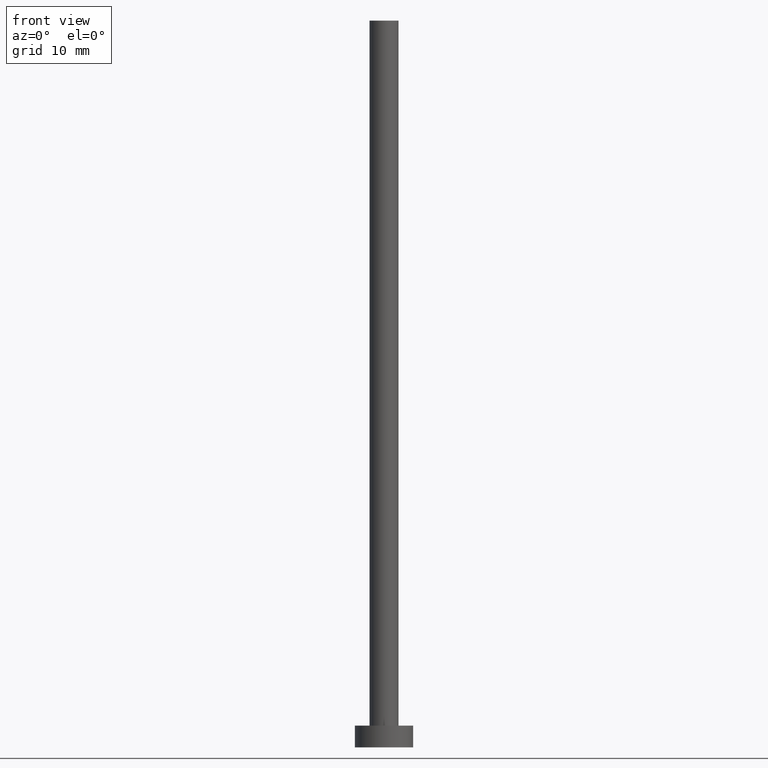
[diagram: clean part render]
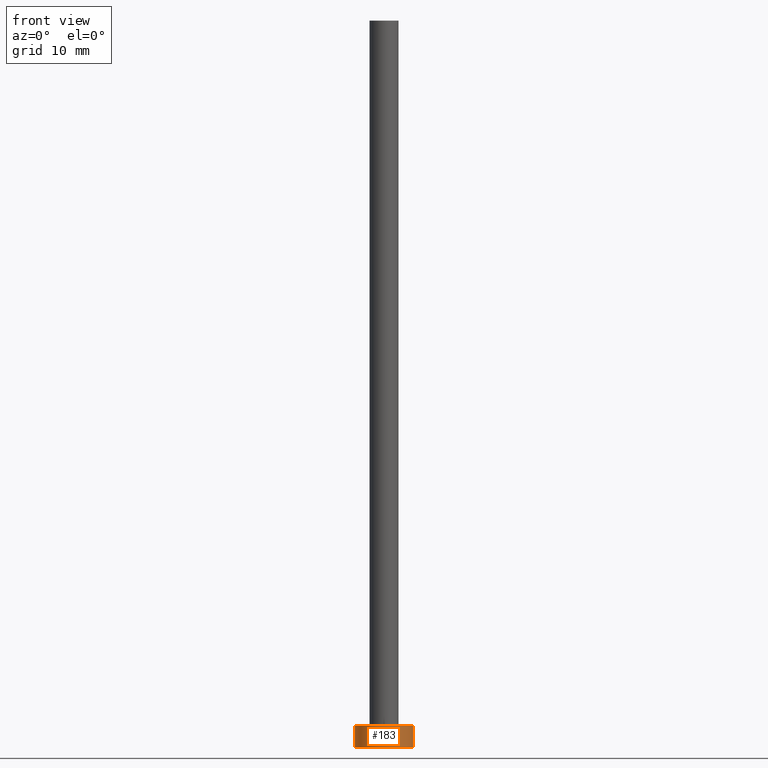
[diagram: same view with one face highlighted and labeled with its STEP entity id]
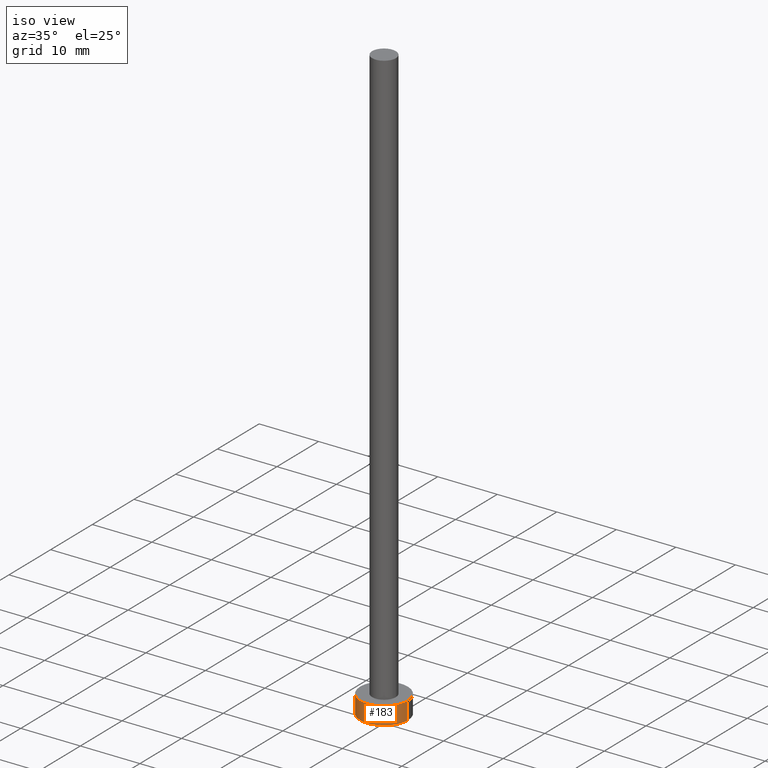
[diagram: same view with one face highlighted and labeled with its STEP entity id]
A machine part, front view. The second image highlights one B-rep face of the part: STEP entity #183.
A second angle (iso view) of the same face is appended — the face is thin or edge-on in the first view.
In plain terms, the highlighted cylindrical surface (edge-blend (fillet) strip) has radius 4 mm, axis along (-0, -0, -1).
Its self-contained STEP definition (entity closure, byte-faithful):
#8 = EDGE_LOOP ( 'NONE', ( #243, #105, #41, #53 ) ) ;
#18 = EDGE_CURVE ( 'NONE', #198, #66, #110, .T. ) ;
#41 = ORIENTED_EDGE ( 'NONE', *, *, #135, .T. ) ;
#53 = ORIENTED_EDGE ( 'NONE', *, *, #18, .T. ) ;
#54 = EDGE_CURVE ( 'NONE', #122, #66, #210, .T. ) ;
#58 = DIRECTION ( 'NONE',  ( 1.000000000000000000, 0.000000000000000000, 0.000000000000000000 ) ) ;
#65 = CYLINDRICAL_SURFACE ( 'NONE', #143, 4.000000000000000000 ) ;
#66 = VERTEX_POINT ( 'NONE', #116 ) ;
#70 = CARTESIAN_POINT ( 'NONE',  ( 4.000000000000000000, 4.898587196589412829E-16, 3.000000000000000000 ) ) ;
#74 = CARTESIAN_POINT ( 'NONE',  ( -4.000000000000000000, 0.000000000000000000, 3.000000000000000000 ) ) ;
#75 = DIRECTION ( 'NONE',  ( 0.000000000000000000, 0.000000000000000000, 1.000000000000000000 ) ) ;
#76 = VECTOR ( 'NONE', #134, 1000.000000000000000 ) ;
#84 = EDGE_CURVE ( 'NONE', #221, #122, #157, .T. ) ;
#91 = VECTOR ( 'NONE', #205, 1000.000000000000000 ) ;
#105 = ORIENTED_EDGE ( 'NONE', *, *, #84, .F. ) ;
#106 = CARTESIAN_POINT ( 'NONE',  ( 0.000000000000000000, 0.000000000000000000, 3.000000000000000000 ) ) ;
#110 = CIRCLE ( 'NONE', #176, 4.000000000000000000 ) ;
#116 = CARTESIAN_POINT ( 'NONE',  ( 4.000000000000000000, 4.898587196589412829E-16, 0.000000000000000000 ) ) ;
#119 = FACE_OUTER_BOUND ( 'NONE', #8, .T. ) ;
#122 = VERTEX_POINT ( 'NONE', #237 ) ;
#123 = AXIS2_PLACEMENT_3D ( 'NONE', #187, #75, #154 ) ;
#129 = CARTESIAN_POINT ( 'NONE',  ( 0.000000000000000000, 0.000000000000000000, 0.000000000000000000 ) ) ;
#134 = DIRECTION ( 'NONE',  ( -0.000000000000000000, -0.000000000000000000, -1.000000000000000000 ) ) ;
#135 = EDGE_CURVE ( 'NONE', #221, #198, #214, .T. ) ;
#143 = AXIS2_PLACEMENT_3D ( 'NONE', #106, #159, #161 ) ;
#150 = DIRECTION ( 'NONE',  ( 0.000000000000000000, 0.000000000000000000, 1.000000000000000000 ) ) ;
#154 = DIRECTION ( 'NONE',  ( 1.000000000000000000, 0.000000000000000000, 0.000000000000000000 ) ) ;
#156 = CARTESIAN_POINT ( 'NONE',  ( -4.000000000000000000, 0.000000000000000000, 3.000000000000000000 ) ) ;
#157 = CIRCLE ( 'NONE', #123, 4.000000000000000000 ) ;
#159 = DIRECTION ( 'NONE',  ( -0.000000000000000000, -0.000000000000000000, -1.000000000000000000 ) ) ;
#161 = DIRECTION ( 'NONE',  ( -1.000000000000000000, 0.000000000000000000, 0.000000000000000000 ) ) ;
#176 = AXIS2_PLACEMENT_3D ( 'NONE', #129, #150, #58 ) ;
#183 = ADVANCED_FACE ( 'NONE', ( #119 ), #65, .T. ) ;
#187 = CARTESIAN_POINT ( 'NONE',  ( 0.000000000000000000, 0.000000000000000000, 3.000000000000000000 ) ) ;
#198 = VERTEX_POINT ( 'NONE', #219 ) ;
#205 = DIRECTION ( 'NONE',  ( -0.000000000000000000, -0.000000000000000000, -1.000000000000000000 ) ) ;
#210 = LINE ( 'NONE', #70, #91 ) ;
#214 = LINE ( 'NONE', #74, #76 ) ;
#219 = CARTESIAN_POINT ( 'NONE',  ( -4.000000000000000000, 0.000000000000000000, 0.000000000000000000 ) ) ;
#221 = VERTEX_POINT ( 'NONE', #156 ) ;
#237 = CARTESIAN_POINT ( 'NONE',  ( 4.000000000000000000, 4.898587196589412829E-16, 3.000000000000000000 ) ) ;
#243 = ORIENTED_EDGE ( 'NONE', *, *, #54, .F. ) ;